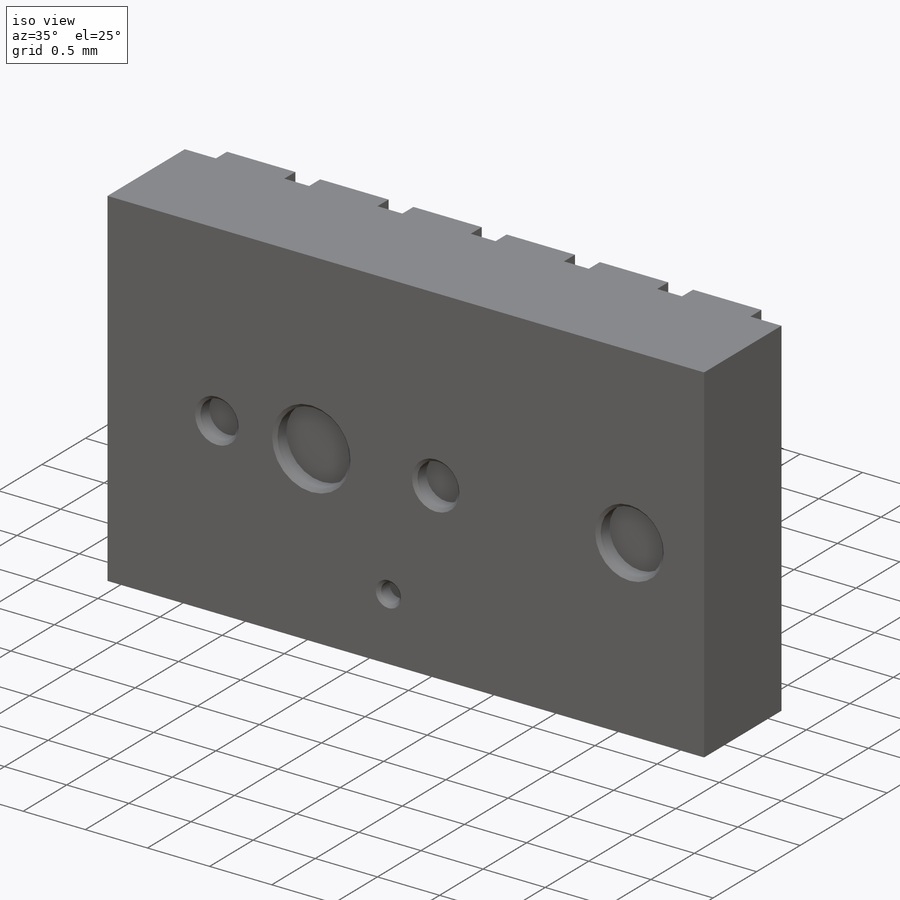
[diagram: iso view]
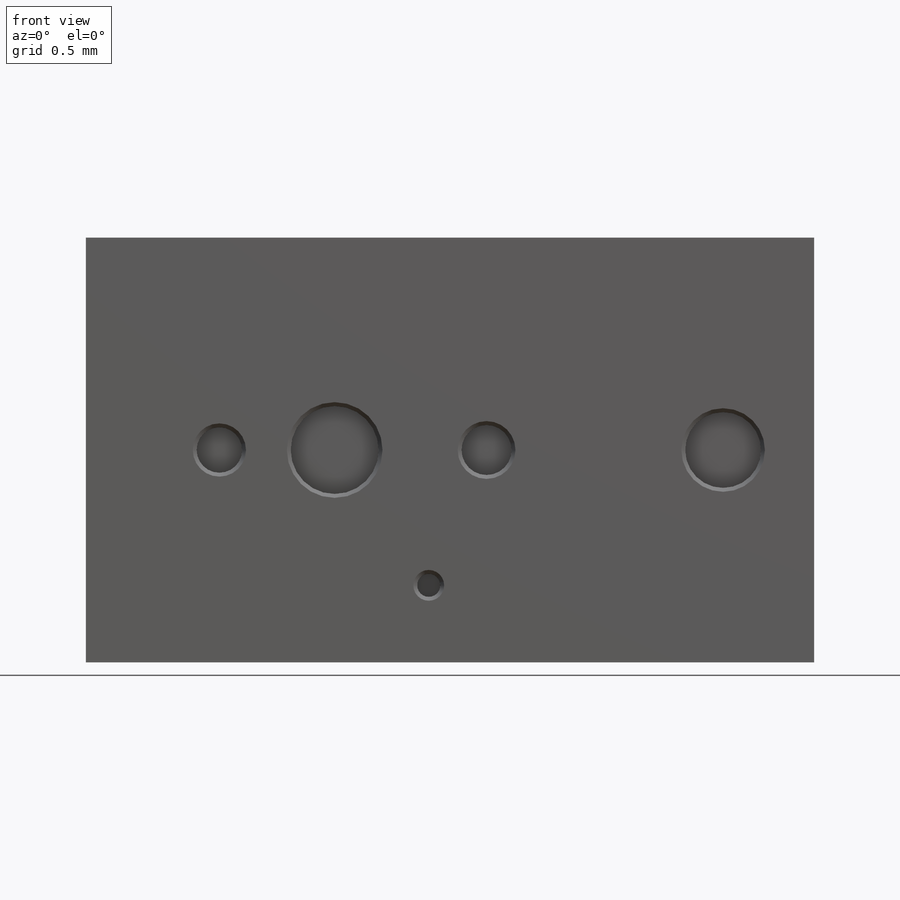
[diagram: front view]
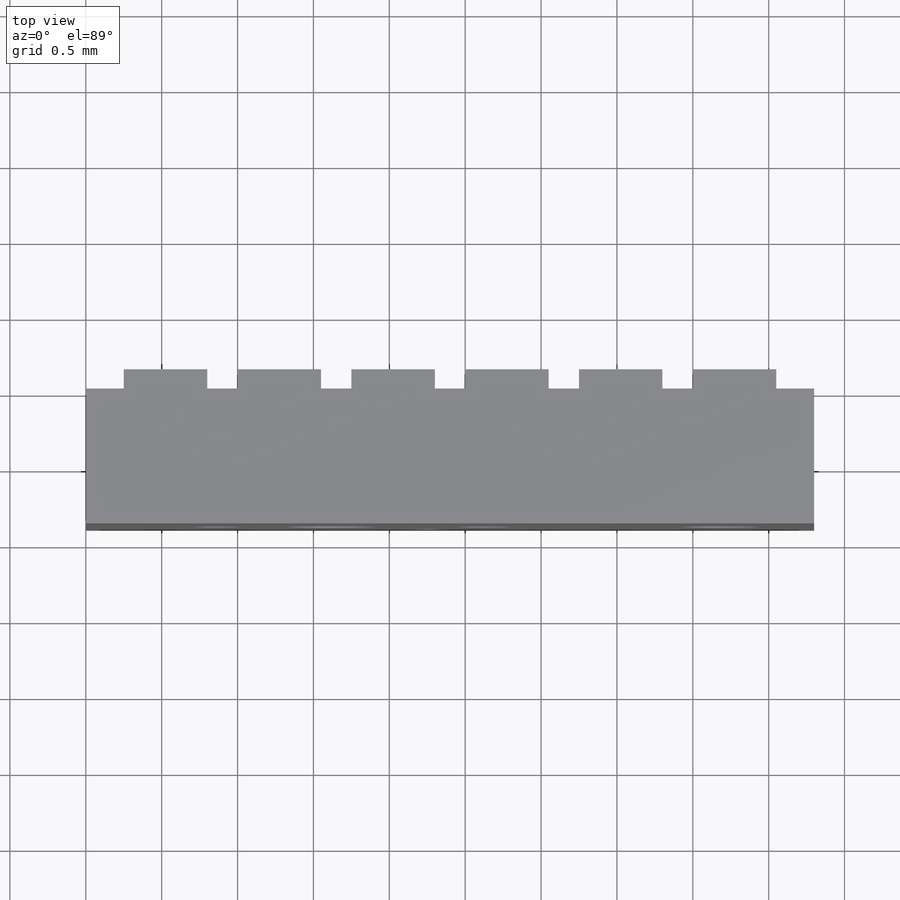
[diagram: top view]
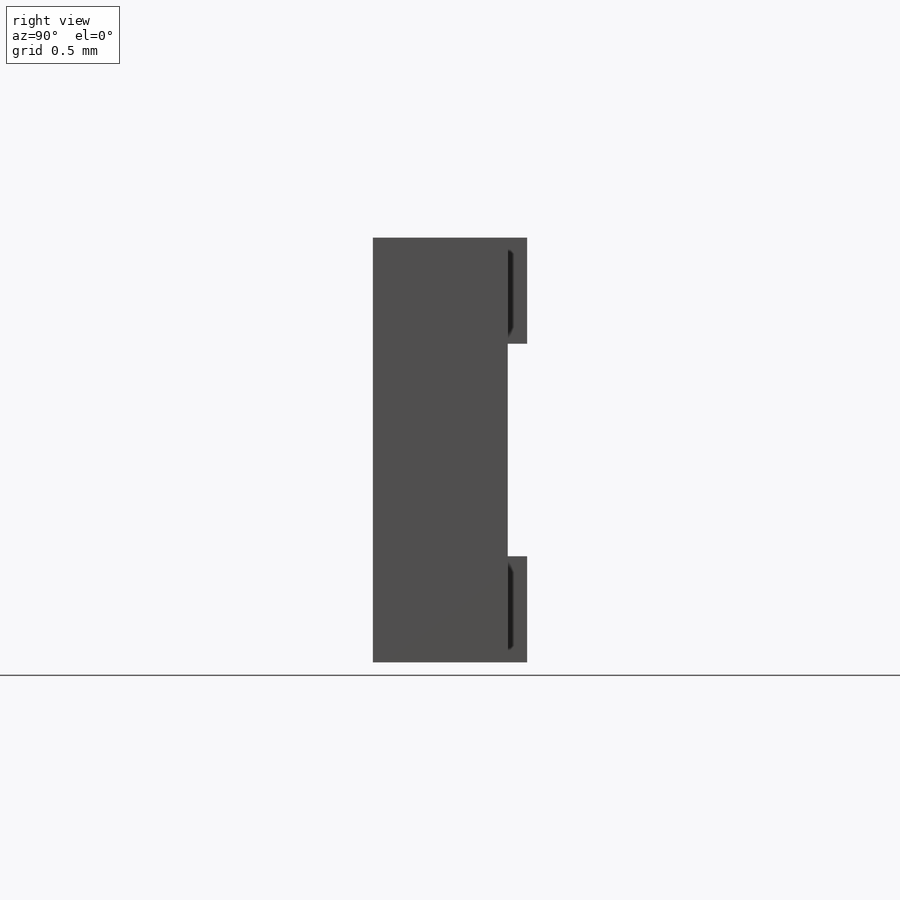
[diagram: right view]
SOLIDWORKS PART (.sldprt)
format: sldprt  version: not decoded by parser v0  size: 217,600 bytes
history: native  units: mm
features: sketch x3, extrude x2, material x1, cut_extrude x1, chamfer x1, pattern_linear x1 (+13 scaffold rows collapsed)
feature tree (22):
  scaffold x13  (default folders/planes/origin — collapsed)
  material  "Material <not specified>"
  sketch  "Sketch1"  dims[D1=4.8mm D2=~2.799994mm]
  extrude  "Boss-Extrude3"  Depth=0.889mm
  sketch  "Sketch5"  dims[D6=0.5mm D7=0.3302mm D8=0.58mm D9=0.3mm D11=0.1524mm D1=0.6mm D2=2.56mm D3=3.32mm D4=2.159mm D5=2.54mm D10=0.508mm]
  cut_extrude  "Cut-Extrude2"  Depth=0.127mm
  chamfer  "Chamfer2"  Distance=0.0254mm Angle=45deg
  sketch  "Sketch6"  dims[D1=0.25mm D2=0.55mm D3=0.7mm]
  extrude  "Boss-Extrude4"  Depth=0.127mm
  pattern_linear  "LPattern1"  Count1=6 Count2=2 Spacing1=0.75mm Spacing2=2.1mm
decode coverage: 8 of 8 modeling features carry decoded parameters
note: ~ marks probable driven/reference dimensions
note: suppression state not decoded; provenance and decode notes live in map.json
